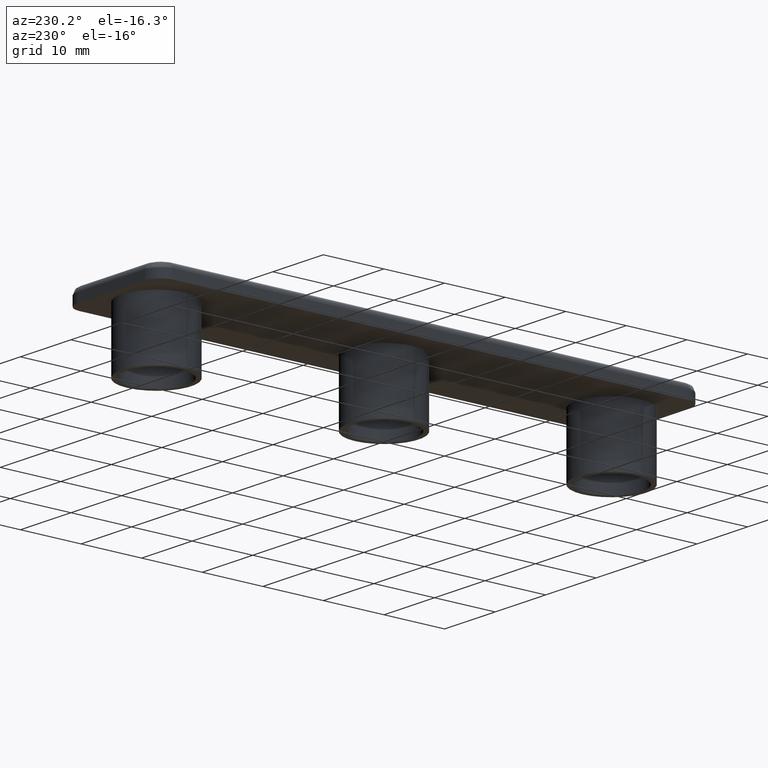
[diagram: clean part render]
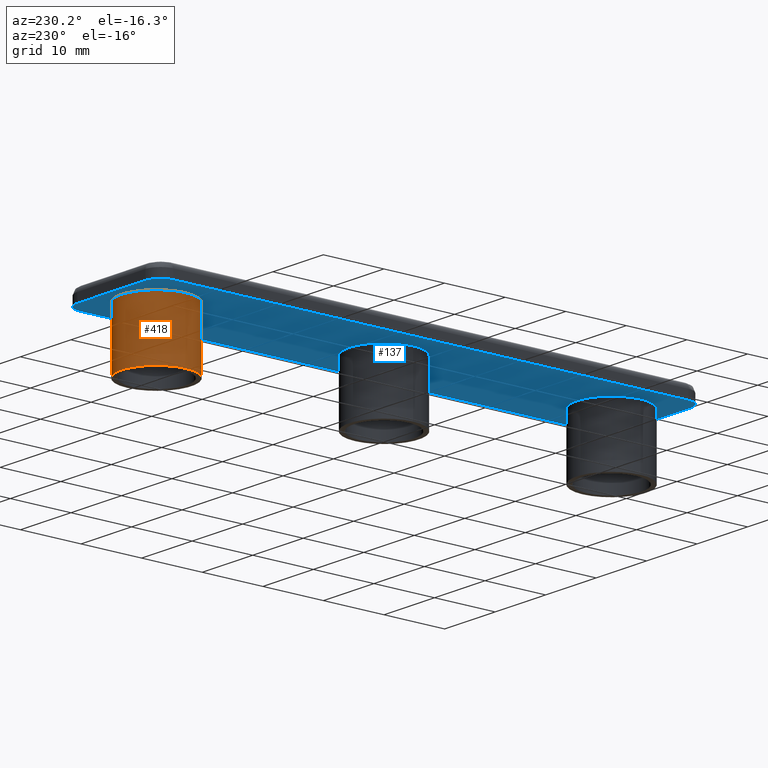
[diagram: same view with the hole feature highlighted: cylindrical wall and planar end face, labeled with their STEP entity ids]
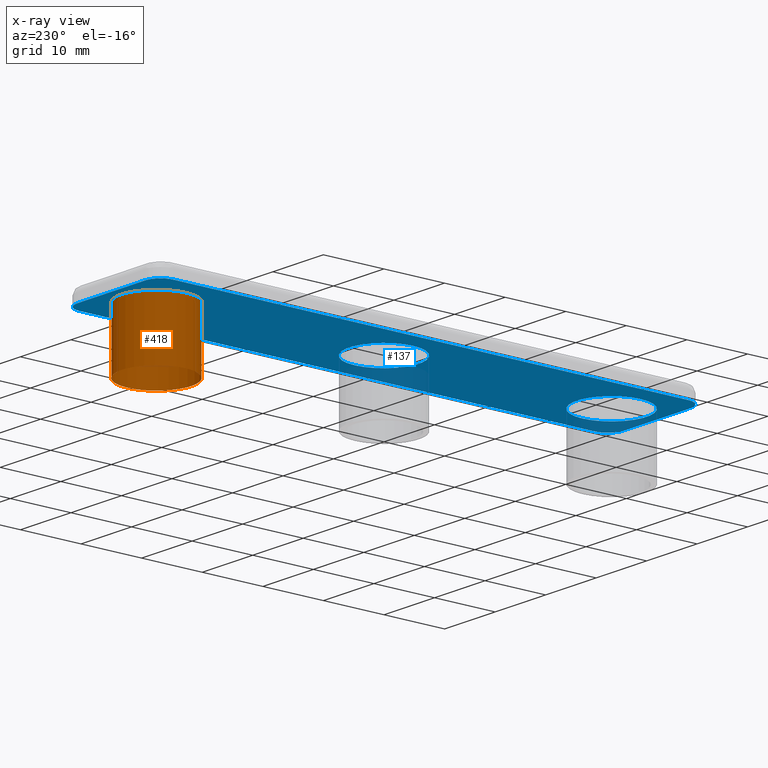
[diagram: x-ray of the same camera — body ghosted, the hole faces saturated]
A machine part, auxiliary view. The highlighted faces form one hole feature of diameter 11.5 mm: the cylindrical wall (entity #418, orange) and its adjacent planar end face (entity #137, blue) — they share a circular edge in the B-rep.
The next image is the same camera in x-ray (body ghosted, the hole faces saturated) — the bore reads through the body.
Wall:
#117=CARTESIAN_POINT('',(5.749999999977001,37.549999999849661,7.041719E-016));
#118=VERTEX_POINT('',#117);
#119=CARTESIAN_POINT('',(-5.749999999976808,37.549999999849661,-7.041719E-016));
#120=VERTEX_POINT('',#119);
#121=CARTESIAN_POINT('',(0.0,37.549999999849661,0.0));
#122=DIRECTION('',(1.224647E-016,0.0,-1.0));
#123=DIRECTION('',(-1.0,0.0,-1.224647E-016));
#124=AXIS2_PLACEMENT_3D('',#121,#122,#123);
#125=CIRCLE('',#124,5.749999999977001);
#126=EDGE_CURVE('',#118,#120,#125,.T.);
#128=CARTESIAN_POINT('',(0.0,37.549999999849661,0.0));
#129=DIRECTION('',(1.224647E-016,0.0,-1.0));
#130=DIRECTION('',(-1.0,0.0,-1.224647E-016));
#131=AXIS2_PLACEMENT_3D('',#128,#129,#130);
#132=CIRCLE('',#131,5.749999999977001);
#133=EDGE_CURVE('',#120,#118,#132,.T.);
#384=CARTESIAN_POINT('',(0.0,37.549999999849661,0.0));
#385=DIRECTION('',(1.224647E-016,0.0,-1.0));
#386=DIRECTION('',(-1.0,0.0,-1.224647E-016));
#387=AXIS2_PLACEMENT_3D('',#384,#385,#386);
#388=CYLINDRICAL_SURFACE('',#387,5.749999999977001);
#389=CARTESIAN_POINT('',(5.749999999977002,37.549999999849661,-10.0));
#390=VERTEX_POINT('',#389);
#391=CARTESIAN_POINT('',(-5.749999999976807,37.549999999849661,-10.0));
#392=VERTEX_POINT('',#391);
#393=CARTESIAN_POINT('',(1.224647E-015,37.549999999849661,-10.0));
#394=DIRECTION('',(1.224647E-016,0.0,-1.0));
#395=DIRECTION('',(-1.0,0.0,-1.224647E-016));
#396=AXIS2_PLACEMENT_3D('',#393,#394,#395);
#397=CIRCLE('',#396,5.749999999977001);
#398=EDGE_CURVE('',#390,#392,#397,.T.);
#399=ORIENTED_EDGE('',*,*,#398,.F.);
#400=CARTESIAN_POINT('',(1.224647E-015,37.549999999849661,-10.0));
#401=DIRECTION('',(1.224647E-016,0.0,-1.0));
#402=DIRECTION('',(-1.0,0.0,-1.224647E-016));
#403=AXIS2_PLACEMENT_3D('',#400,#401,#402);
#404=CIRCLE('',#403,5.749999999977001);
#405=EDGE_CURVE('',#392,#390,#404,.T.);
#406=ORIENTED_EDGE('',*,*,#405,.F.);
#407=CARTESIAN_POINT('',(-5.749999999976808,37.549999999849661,-7.041719E-016));
#408=DIRECTION('',(0.0,0.0,-1.0));
#409=VECTOR('',#408,10.0);
#410=LINE('',#407,#409);
#411=EDGE_CURVE('',#120,#392,#410,.T.);
#412=ORIENTED_EDGE('',*,*,#411,.F.);
#413=ORIENTED_EDGE('',*,*,#133,.T.);
#414=ORIENTED_EDGE('',*,*,#126,.T.);
#415=ORIENTED_EDGE('',*,*,#411,.T.);
#416=EDGE_LOOP('',(#399,#406,#412,#413,#414,#415));
#417=FACE_OUTER_BOUND('',#416,.T.);
#418=ADVANCED_FACE('',(#417),#388,.T.);
End face:
#2=CARTESIAN_POINT('',(11.100049733935066,-53.999955233543915,1.359364E-015));
#3=DIRECTION('',(0.0,0.0,-1.0));
#4=DIRECTION('',(-1.0,0.0,0.0));
#5=AXIS2_PLACEMENT_3D('',#2,#3,#4);
#6=PLANE('',#5);
#7=CARTESIAN_POINT('',(-6.749954999972943,44.999999999819920,-8.266311E-016));
#8=VERTEX_POINT('',#7);
#9=CARTESIAN_POINT('',(6.750044999972943,44.999999999819920,8.266421E-016));
#10=VERTEX_POINT('',#9);
#11=CARTESIAN_POINT('',(-6.749954999973063,44.999999999819991,-8.266311E-016));
#12=DIRECTION('',(1.0,0.0,0.0));
#13=VECTOR('',#12,13.499999999946006);
#14=LINE('',#11,#13);
#15=EDGE_CURVE('',#8,#10,#14,.T.);
#16=ORIENTED_EDGE('',*,*,#15,.T.);
#17=CARTESIAN_POINT('',(9.250044999962938,42.499999999829924,1.132804E-015));
#18=VERTEX_POINT('',#17);
#19=CARTESIAN_POINT('',(6.750044999972943,42.499999999829924,8.266421E-016));
#20=DIRECTION('',(1.224647E-016,0.0,-1.0));
#21=DIRECTION('',(-1.0,0.0,-1.224647E-016));
#22=AXIS2_PLACEMENT_3D('',#19,#20,#21);
#23=CIRCLE('',#22,2.499999999990000);
#24=EDGE_CURVE('',#10,#18,#23,.T.);
#25=ORIENTED_EDGE('',*,*,#24,.T.);
#26=CARTESIAN_POINT('',(9.250044999962938,-42.499954999830152,1.132804E-015));
#27=VERTEX_POINT('',#26);
#28=CARTESIAN_POINT('',(9.250044999962938,42.499999999829924,1.132804E-015));
#29=DIRECTION('',(0.0,-1.0,0.0));
#30=VECTOR('',#29,84.999954999660019);
#31=LINE('',#28,#30);
#32=EDGE_CURVE('',#18,#27,#31,.T.);
#33=ORIENTED_EDGE('',*,*,#32,.T.);
#34=CARTESIAN_POINT('',(6.750044999972943,-44.999954999820147,8.266421E-016));
#35=VERTEX_POINT('',#34);
#36=CARTESIAN_POINT('',(6.750044999972943,-42.499954999830152,8.266421E-016));
#37=DIRECTION('',(1.224647E-016,0.0,-1.0));
#38=DIRECTION('',(-1.0,0.0,-1.224647E-016));
#39=AXIS2_PLACEMENT_3D('',#36,#37,#38);
#40=CIRCLE('',#39,2.499999999990000);
#41=EDGE_CURVE('',#27,#35,#40,.T.);
#42=ORIENTED_EDGE('',*,*,#41,.T.);
#43=CARTESIAN_POINT('',(-6.749954999972943,-44.999954999820147,-8.266311E-016));
#44=VERTEX_POINT('',#43);
#45=CARTESIAN_POINT('',(6.750044999972943,-44.999954999820147,8.266421E-016));
#46=DIRECTION('',(-1.0,0.0,0.0));
#47=VECTOR('',#46,13.499999999946006);
#48=LINE('',#45,#47);
#49=EDGE_CURVE('',#35,#44,#48,.T.);
#50=ORIENTED_EDGE('',*,*,#49,.T.);
#51=CARTESIAN_POINT('',(-9.249954999962938,-42.499954999830152,-1.132793E-015));
#52=VERTEX_POINT('',#51);
#53=CARTESIAN_POINT('',(-6.749954999972943,-42.499954999830152,-8.266311E-016));
#54=DIRECTION('',(1.224647E-016,0.0,-1.0));
#55=DIRECTION('',(-1.0,0.0,-1.224647E-016));
#56=AXIS2_PLACEMENT_3D('',#53,#54,#55);
#57=CIRCLE('',#56,2.499999999990000);
#58=EDGE_CURVE('',#44,#52,#57,.T.);
#59=ORIENTED_EDGE('',*,*,#58,.T.);
#60=CARTESIAN_POINT('',(-9.249954999962938,42.499999999829924,-1.132793E-015));
#61=VERTEX_POINT('',#60);
#62=CARTESIAN_POINT('',(-9.249954999962938,-42.499954999830152,-1.132793E-015));
#63=DIRECTION('',(0.0,1.0,0.0));
#64=VECTOR('',#63,84.999954999660019);
#65=LINE('',#62,#64);
#66=EDGE_CURVE('',#52,#61,#65,.T.);
#67=ORIENTED_EDGE('',*,*,#66,.T.);
#68=CARTESIAN_POINT('',(-6.749954999972943,42.499999999829924,-8.266311E-016));
#69=DIRECTION('',(1.224647E-016,0.0,-1.0));
#70=DIRECTION('',(-1.0,0.0,-1.224647E-016));
#71=AXIS2_PLACEMENT_3D('',#68,#69,#70);
#72=CIRCLE('',#71,2.499999999990000);
#73=EDGE_CURVE('',#61,#8,#72,.T.);
#74=ORIENTED_EDGE('',*,*,#73,.T.);
#75=EDGE_LOOP('',(#16,#25,#33,#42,#50,#59,#67,#74));
#76=FACE_OUTER_BOUND('',#75,.T.);
#77=CARTESIAN_POINT('',(5.749999999977001,-37.549999999849661,7.041719E-016));
#78=VERTEX_POINT('',#77);
#79=CARTESIAN_POINT('',(-5.749999999976808,-37.549999999849661,-7.041719E-016));
#80=VERTEX_POINT('',#79);
#81=CARTESIAN_POINT('',(0.0,-37.549999999849661,0.0));
#82=DIRECTION('',(1.224647E-016,0.0,-1.0));
#83=DIRECTION('',(-1.0,0.0,-1.224647E-016));
#84=AXIS2_PLACEMENT_3D('',#81,#82,#83);
#85=CIRCLE('',#84,5.749999999977001);
#86=EDGE_CURVE('',#78,#80,#85,.T.);
#87=ORIENTED_EDGE('',*,*,#86,.F.);
#88=CARTESIAN_POINT('',(0.0,-37.549999999849661,0.0));
#89=DIRECTION('',(1.224647E-016,0.0,-1.0));
#90=DIRECTION('',(-1.0,0.0,-1.224647E-016));
#91=AXIS2_PLACEMENT_3D('',#88,#89,#90);
#92=CIRCLE('',#91,5.749999999977001);
#93=EDGE_CURVE('',#80,#78,#92,.T.);
#94=ORIENTED_EDGE('',*,*,#93,.F.);
#95=EDGE_LOOP('',(#87,#94));
#96=FACE_BOUND('',#95,.T.);
#97=CARTESIAN_POINT('',(5.749999999977001,0.0,7.041719E-016));
#98=VERTEX_POINT('',#97);
#99=CARTESIAN_POINT('',(-5.749999999976808,0.0,-7.041719E-016));
#100=VERTEX_POINT('',#99);
#101=CARTESIAN_POINT('',(0.0,0.0,0.0));
#102=DIRECTION('',(1.224647E-016,0.0,-1.0));
#103=DIRECTION('',(-1.0,0.0,-1.224647E-016));
#104=AXIS2_PLACEMENT_3D('',#101,#102,#103);
#105=CIRCLE('',#104,5.749999999977001);
#106=EDGE_CURVE('',#98,#100,#105,.T.);
#107=ORIENTED_EDGE('',*,*,#106,.F.);
#108=CARTESIAN_POINT('',(0.0,0.0,0.0));
#109=DIRECTION('',(1.224647E-016,0.0,-1.0));
#110=DIRECTION('',(-1.0,0.0,-1.224647E-016));
#111=AXIS2_PLACEMENT_3D('',#108,#109,#110);
#112=CIRCLE('',#111,5.749999999977001);
#113=EDGE_CURVE('',#100,#98,#112,.T.);
#114=ORIENTED_EDGE('',*,*,#113,.F.);
#115=EDGE_LOOP('',(#107,#114));
#116=FACE_BOUND('',#115,.T.);
#117=CARTESIAN_POINT('',(5.749999999977001,37.549999999849661,7.041719E-016));
#118=VERTEX_POINT('',#117);
#119=CARTESIAN_POINT('',(-5.749999999976808,37.549999999849661,-7.041719E-016));
#120=VERTEX_POINT('',#119);
#121=CARTESIAN_POINT('',(0.0,37.549999999849661,0.0));
#122=DIRECTION('',(1.224647E-016,0.0,-1.0));
#123=DIRECTION('',(-1.0,0.0,-1.224647E-016));
#124=AXIS2_PLACEMENT_3D('',#121,#122,#123);
#125=CIRCLE('',#124,5.749999999977001);
#126=EDGE_CURVE('',#118,#120,#125,.T.);
#127=ORIENTED_EDGE('',*,*,#126,.F.);
#128=CARTESIAN_POINT('',(0.0,37.549999999849661,0.0));
#129=DIRECTION('',(1.224647E-016,0.0,-1.0));
#130=DIRECTION('',(-1.0,0.0,-1.224647E-016));
#131=AXIS2_PLACEMENT_3D('',#128,#129,#130);
#132=CIRCLE('',#131,5.749999999977001);
#133=EDGE_CURVE('',#120,#118,#132,.T.);
#134=ORIENTED_EDGE('',*,*,#133,.F.);
#135=EDGE_LOOP('',(#127,#134));
#136=FACE_BOUND('',#135,.T.);
#137=ADVANCED_FACE('',(#76,#96,#116,#136),#6,.T.);